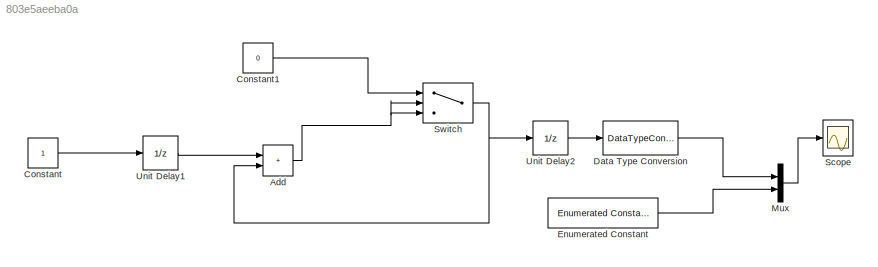
MODEL slx_803e5aeeba0a
KIND model
CONFIG AbsTol = auto
CONFIG EnableMultiTasking = off
CONFIG FixedStep = auto
CONFIG MaxStep = auto
CONFIG MinStep = auto
CONFIG RelTol = 1e-3
CONFIG SampleTimeConstraint = Unconstrained
CONFIG SolverName = VariableStepAuto
CONFIG StartTime = 0.0
CONFIG StopTime = 10.0
BLOCK [Sum] Add
  IconShape = rectangular
  OutDataTypeStr = int32
  Ports = [2, 1]
BLOCK [Constant] Constant
  OutDataTypeStr = int32
BLOCK [Constant] Constant1
  OutDataTypeStr = int32
  Value = 0
BLOCK [DataTypeConversion] Data Type Conversion
  OutDataTypeStr = Enum: Number
  RndMeth = Floor
  SaturateOnIntegerOverflow = off
BLOCK [Reference] Enumerated Constant  REF=simulink/Sources/Enumerated
Constant
  Ports = [0, 1]
  SourceBlock = simulink/Sources/Enumerated\nConstant
  SourceProductBaseCode = SL
  SourceType = Enumerated Constant
BLOCK [Mux] Mux
  DisplayOption = bar
  Inputs = 2
  Ports = [2, 1]
BLOCK [Scope] Scope
  Floating = off
  NumInputPorts = 1
  Ports = [1]
  ScopeSpecificationString = Simulink.scopes.TimeScopeBlockCfg('CurrentConfiguration', extmgr.ConfigurationSet(extmgr.Configuration('Core','General UI',true),extmgr.Configuration('Core','Source UI',true),extmgr.Configuration('Sources','WiredSimulink',true),extmgr.Configuration('Visuals','Time Domain',true,'SerializedDisplays',{struct('MinYLimReal','-0.20932','MaxYLimReal','2.03688','YLabelReal','','MinYLimMag','0.00000','MaxY...<+1483ch>
BLOCK [Switch] Switch
  Criteria = u2 > Threshold
  InputSameDT = off
  OutDataTypeStr = int32
  SaturateOnIntegerOverflow = off
  Threshold = 3
BLOCK [UnitDelay] Unit Delay1
  HasFrameUpgradeWarning = on
  SampleTime = -1
BLOCK [UnitDelay] Unit Delay2
  HasFrameUpgradeWarning = on
  SampleTime = -1
NET Add:1 -> Switch:2, Switch:3
LINE Constant1:1 -> Switch:1
LINE Constant:1 -> Unit Delay1:1
LINE Data Type Conversion:1 -> Mux:1
LINE Enumerated Constant:1 -> Mux:2
LINE Mux:1 -> Scope:1
NET Switch:1 -> Add:2, Unit Delay2:1
LINE Unit Delay1:1 -> Add:1
LINE Unit Delay2:1 -> Data Type Conversion:1
note: NET lines group one-source signal fan-out (src -> all destinations, sorted); 1:1 wires keep LINE
